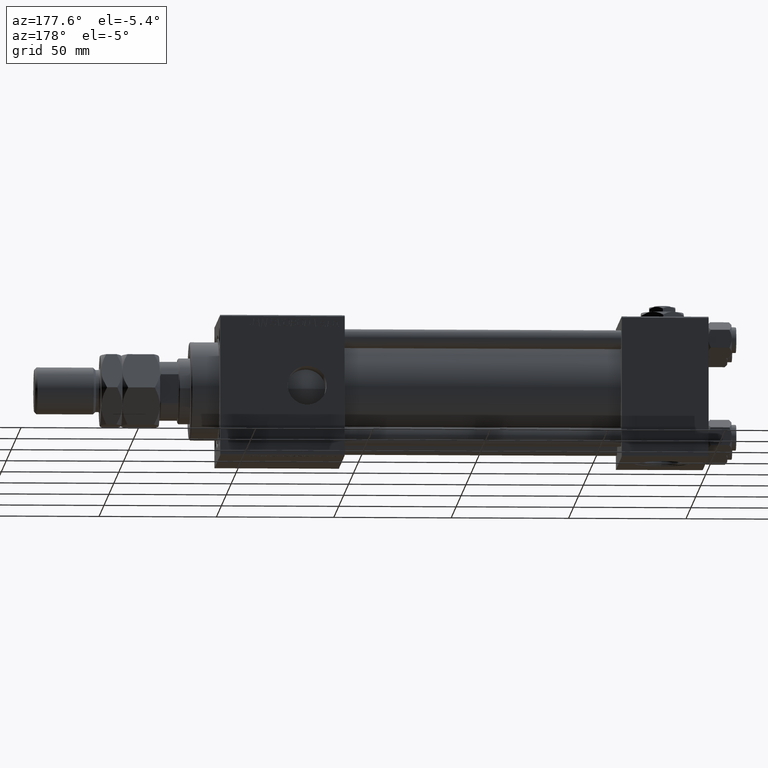
[diagram: clean part render]
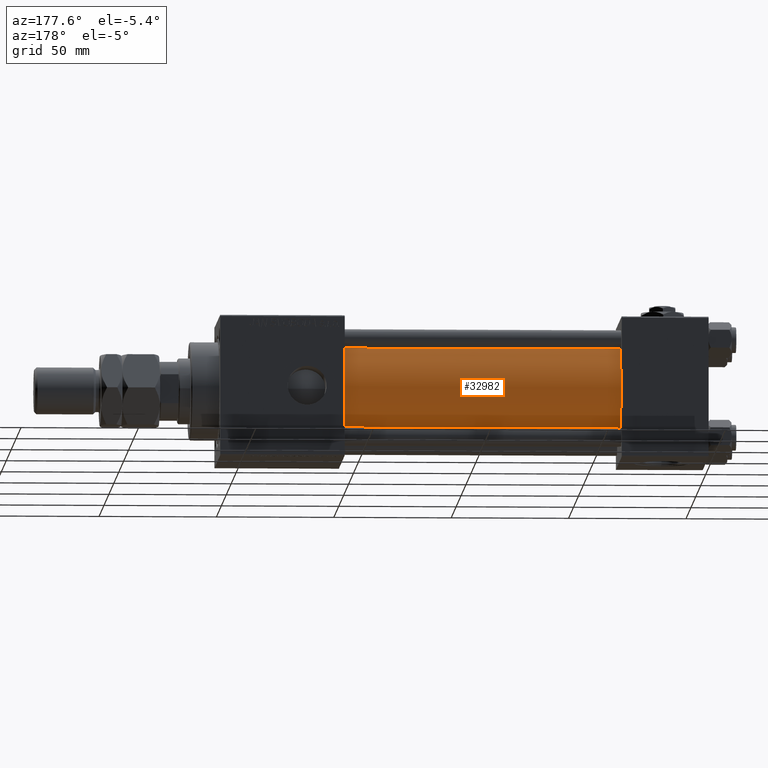
[diagram: same view with one face highlighted and labeled with its STEP entity id]
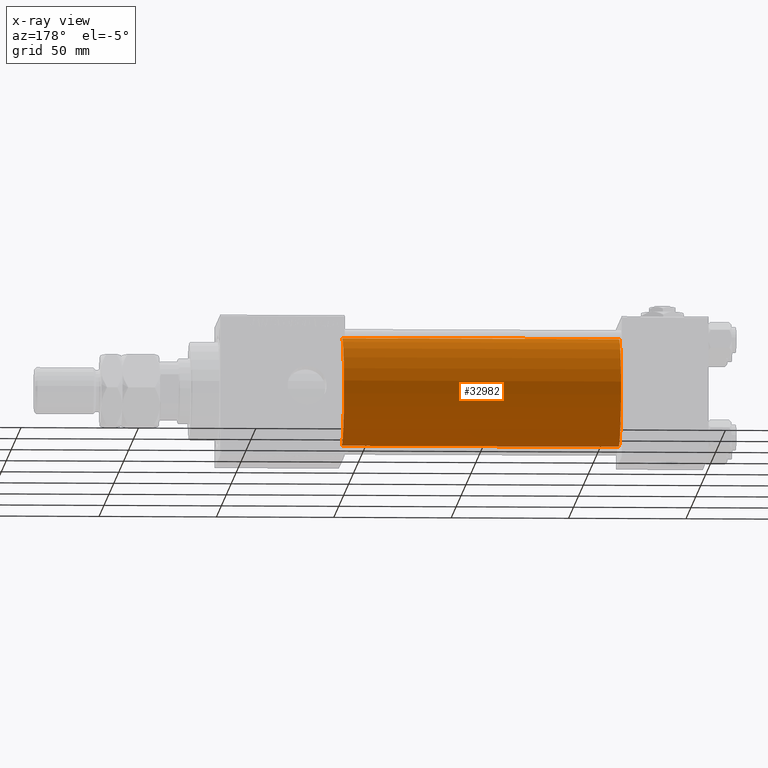
[diagram: x-ray of the same camera — body ghosted, the highlighted face saturated]
A machine part, auxiliary view. The second image highlights one B-rep face of the part: STEP entity #32982.
The next image is the same camera in x-ray: the body ghosted, the highlighted face saturated — about 0% of this face is hidden behind the body in this view.
In plain terms, the highlighted cylindrical surface (partial cylindrical patch) has radius 23 mm, axis along (-1, -0, -0).
Its self-contained STEP definition (entity closure, byte-faithful):
#341 = LINE ( 'NONE', #25011, #4028 ) ;
#1809 = CARTESIAN_POINT ( 'NONE',  ( 155.0000000000000000, 2.146024240737016609E-16, -23.00000000000000000 ) ) ;
#2411 = AXIS2_PLACEMENT_3D ( 'NONE', #25152, #41669, #28680 ) ;
#3460 = EDGE_CURVE ( 'NONE', #33791, #7971, #14518, .T. ) ;
#3464 = DIRECTION ( 'NONE',  ( 0.000000000000000000, 0.000000000000000000, 1.000000000000000000 ) ) ;
#4028 = VECTOR ( 'NONE', #25539, 1000.000000000000000 ) ;
#5006 = DIRECTION ( 'NONE',  ( 0.000000000000000000, 0.000000000000000000, 1.000000000000000000 ) ) ;
#5281 = DIRECTION ( 'NONE',  ( 1.000000000000000000, -0.000000000000000000, 0.000000000000000000 ) ) ;
#7971 = VERTEX_POINT ( 'NONE', #31156 ) ;
#13416 = CARTESIAN_POINT ( 'NONE',  ( 37.00000000000000711, -2.602085213965210642E-15, 0.000000000000000000 ) ) ;
#14518 = CIRCLE ( 'NONE', #2411, 23.00000000000000000 ) ;
#16117 = AXIS2_PLACEMENT_3D ( 'NONE', #13416, #5281, #5006 ) ;
#20279 = DIRECTION ( 'NONE',  ( -1.000000000000000000, -0.000000000000000000, -0.000000000000000000 ) ) ;
#20585 = ORIENTED_EDGE ( 'NONE', *, *, #29188, .T. ) ;
#20937 = CARTESIAN_POINT ( 'NONE',  ( 37.00000000000000711, -2.602085213965210642E-15, 23.00000000000000000 ) ) ;
#21315 = EDGE_LOOP ( 'NONE', ( #43825, #35981, #20585, #48758 ) ) ;
#23050 = VERTEX_POINT ( 'NONE', #48821 ) ;
#25011 = CARTESIAN_POINT ( 'NONE',  ( 155.0000000000000000, -2.602085213965210642E-15, 23.00000000000000000 ) ) ;
#25152 = CARTESIAN_POINT ( 'NONE',  ( 155.0000000000000000, -2.602085213965210642E-15, 0.000000000000000000 ) ) ;
#25539 = DIRECTION ( 'NONE',  ( -1.000000000000000000, -0.000000000000000000, -0.000000000000000000 ) ) ;
#28680 = DIRECTION ( 'NONE',  ( 0.000000000000000000, 0.000000000000000000, -1.000000000000000000 ) ) ;
#29188 = EDGE_CURVE ( 'NONE', #23050, #32518, #39468, .T. ) ;
#29488 = EDGE_CURVE ( 'NONE', #7971, #32518, #341, .T. ) ;
#31156 = CARTESIAN_POINT ( 'NONE',  ( 155.0000000000000000, -2.602085213965210642E-15, 23.00000000000000000 ) ) ;
#31856 = DIRECTION ( 'NONE',  ( -1.000000000000000000, -0.000000000000000000, -0.000000000000000000 ) ) ;
#32518 = VERTEX_POINT ( 'NONE', #20937 ) ;
#32982 = ADVANCED_FACE ( 'NONE', ( #52245 ), #44380, .T. ) ;
#33791 = VERTEX_POINT ( 'NONE', #48043 ) ;
#35981 = ORIENTED_EDGE ( 'NONE', *, *, #41287, .T. ) ;
#38920 = LINE ( 'NONE', #1809, #40477 ) ;
#39468 = CIRCLE ( 'NONE', #16117, 23.00000000000000000 ) ;
#40477 = VECTOR ( 'NONE', #31856, 1000.000000000000000 ) ;
#41287 = EDGE_CURVE ( 'NONE', #33791, #23050, #38920, .T. ) ;
#41669 = DIRECTION ( 'NONE',  ( 1.000000000000000000, 0.000000000000000000, 0.000000000000000000 ) ) ;
#43825 = ORIENTED_EDGE ( 'NONE', *, *, #3460, .F. ) ;
#43947 = AXIS2_PLACEMENT_3D ( 'NONE', #44111, #20279, #3464 ) ;
#44111 = CARTESIAN_POINT ( 'NONE',  ( 155.0000000000000000, -2.602085213965210642E-15, 0.000000000000000000 ) ) ;
#44380 = CYLINDRICAL_SURFACE ( 'NONE', #43947, 23.00000000000000000 ) ;
#48043 = CARTESIAN_POINT ( 'NONE',  ( 155.0000000000000000, 2.146024240737016609E-16, -23.00000000000000000 ) ) ;
#48758 = ORIENTED_EDGE ( 'NONE', *, *, #29488, .F. ) ;
#48821 = CARTESIAN_POINT ( 'NONE',  ( 37.00000000000000711, 2.146024240737016609E-16, -23.00000000000000000 ) ) ;
#52245 = FACE_OUTER_BOUND ( 'NONE', #21315, .T. ) ;